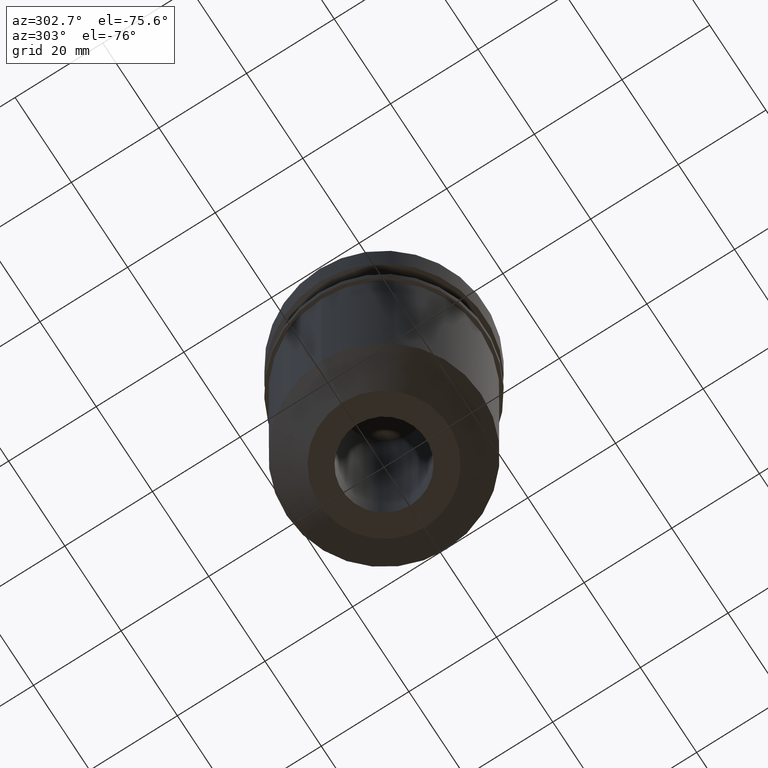
[diagram: clean part render]
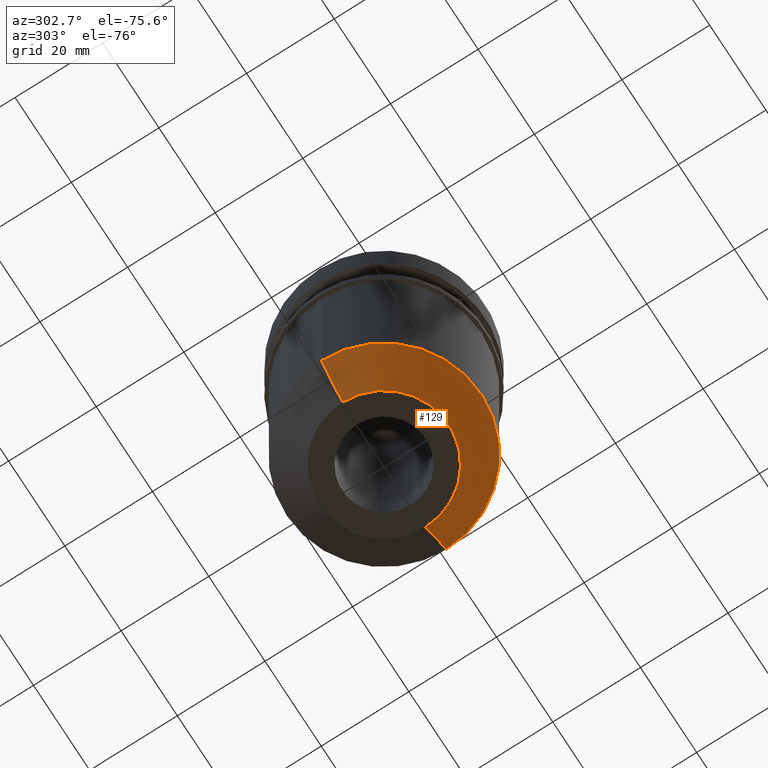
[diagram: same view with one face highlighted and labeled with its STEP entity id]
A machine part, auxiliary view. The second image highlights one B-rep face of the part: STEP entity #129.
In plain terms, the highlighted conical surface has half-angle 45 deg.
Its self-contained STEP definition (entity closure, byte-faithful):
#20 = VERTEX_POINT ( 'NONE', #773 ) ;
#67 = CARTESIAN_POINT ( 'NONE',  ( 22.22500000000000142, 0.000000000000000000, -68.70000000000000284 ) ) ;
#79 = DIRECTION ( 'NONE',  ( -0.000000000000000000, -0.000000000000000000, 1.000000000000000000 ) ) ;
#84 = CIRCLE ( 'NONE', #531, 22.22500000000000142 ) ;
#106 = EDGE_CURVE ( 'NONE', #564, #121, #430, .T. ) ;
#121 = VERTEX_POINT ( 'NONE', #67 ) ;
#129 = ADVANCED_FACE ( 'NONE', ( #371 ), #191, .T. ) ;
#167 = VERTEX_POINT ( 'NONE', #249 ) ;
#169 = VECTOR ( 'NONE', #556, 1000.000000000000000 ) ;
#186 = VECTOR ( 'NONE', #585, 1000.000000000000000 ) ;
#191 = CONICAL_SURFACE ( 'NONE', #205, 14.72500000000008136, 0.7853981633974425058 ) ;
#205 = AXIS2_PLACEMENT_3D ( 'NONE', #308, #79, #375 ) ;
#222 = CARTESIAN_POINT ( 'NONE',  ( 0.000000000000000000, 0.000000000000000000, -76.20000000000000284 ) ) ;
#249 = CARTESIAN_POINT ( 'NONE',  ( -22.22500000000000142, 2.721777511104992849E-15, -68.70000000000000284 ) ) ;
#253 = CARTESIAN_POINT ( 'NONE',  ( 14.72500000000008136, 0.000000000000000000, -76.20000000000000284 ) ) ;
#266 = ORIENTED_EDGE ( 'NONE', *, *, #696, .F. ) ;
#294 = EDGE_CURVE ( 'NONE', #20, #564, #659, .T. ) ;
#308 = CARTESIAN_POINT ( 'NONE',  ( 0.000000000000000000, 0.000000000000000000, -76.20000000000000284 ) ) ;
#340 = CARTESIAN_POINT ( 'NONE',  ( -14.72500000000008136, 1.803292411744487521E-15, -76.20000000000000284 ) ) ;
#342 = AXIS2_PLACEMENT_3D ( 'NONE', #222, #465, #453 ) ;
#371 = FACE_OUTER_BOUND ( 'NONE', #648, .T. ) ;
#375 = DIRECTION ( 'NONE',  ( 1.000000000000000000, 0.000000000000000000, 0.000000000000000000 ) ) ;
#409 = DIRECTION ( 'NONE',  ( 1.000000000000000000, 0.000000000000000000, 0.000000000000000000 ) ) ;
#423 = CARTESIAN_POINT ( 'NONE',  ( 0.000000000000000000, 0.000000000000000000, -68.70000000000000284 ) ) ;
#430 = LINE ( 'NONE', #253, #169 ) ;
#439 = CARTESIAN_POINT ( 'NONE',  ( 14.72500000000008136, 0.000000000000000000, -76.20000000000000284 ) ) ;
#441 = ORIENTED_EDGE ( 'NONE', *, *, #106, .T. ) ;
#453 = DIRECTION ( 'NONE',  ( 1.000000000000000000, 0.000000000000000000, 0.000000000000000000 ) ) ;
#464 = ORIENTED_EDGE ( 'NONE', *, *, #711, .F. ) ;
#465 = DIRECTION ( 'NONE',  ( -0.000000000000000000, -0.000000000000000000, 1.000000000000000000 ) ) ;
#531 = AXIS2_PLACEMENT_3D ( 'NONE', #423, #702, #409 ) ;
#556 = DIRECTION ( 'NONE',  ( 0.7071067811865434649, 0.000000000000000000, 0.7071067811865516806 ) ) ;
#564 = VERTEX_POINT ( 'NONE', #439 ) ;
#585 = DIRECTION ( 'NONE',  ( -0.7071067811865434649, 8.659560562354883554E-17, 0.7071067811865516806 ) ) ;
#592 = LINE ( 'NONE', #340, #186 ) ;
#648 = EDGE_LOOP ( 'NONE', ( #464, #706, #441, #266 ) ) ;
#659 = CIRCLE ( 'NONE', #342, 14.72500000000008136 ) ;
#696 = EDGE_CURVE ( 'NONE', #167, #121, #84, .T. ) ;
#702 = DIRECTION ( 'NONE',  ( -0.000000000000000000, -0.000000000000000000, 1.000000000000000000 ) ) ;
#706 = ORIENTED_EDGE ( 'NONE', *, *, #294, .T. ) ;
#711 = EDGE_CURVE ( 'NONE', #20, #167, #592, .T. ) ;
#773 = CARTESIAN_POINT ( 'NONE',  ( -14.72500000000008136, 2.262534961424740382E-15, -76.20000000000000284 ) ) ;